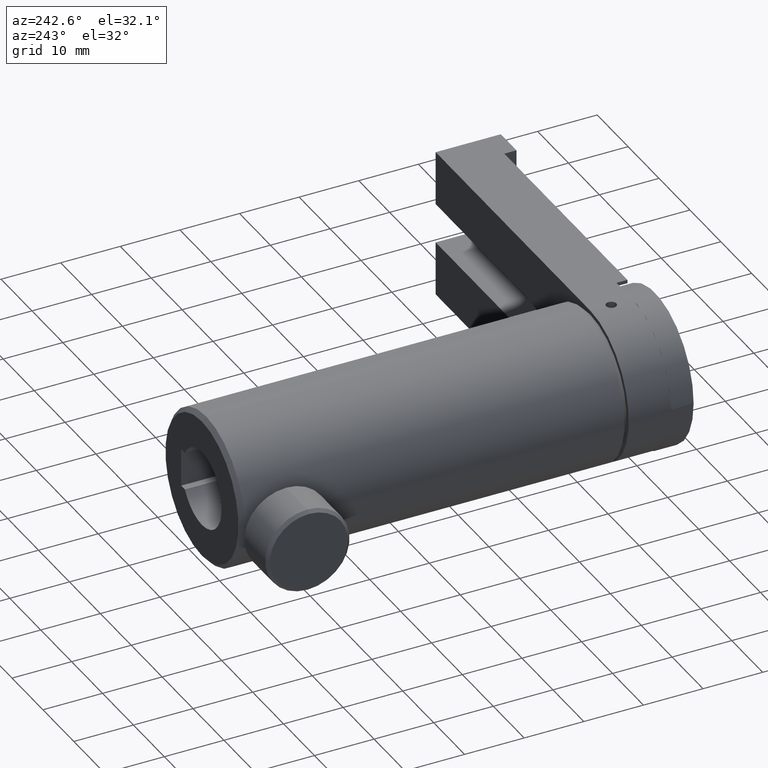
[diagram: clean part render]
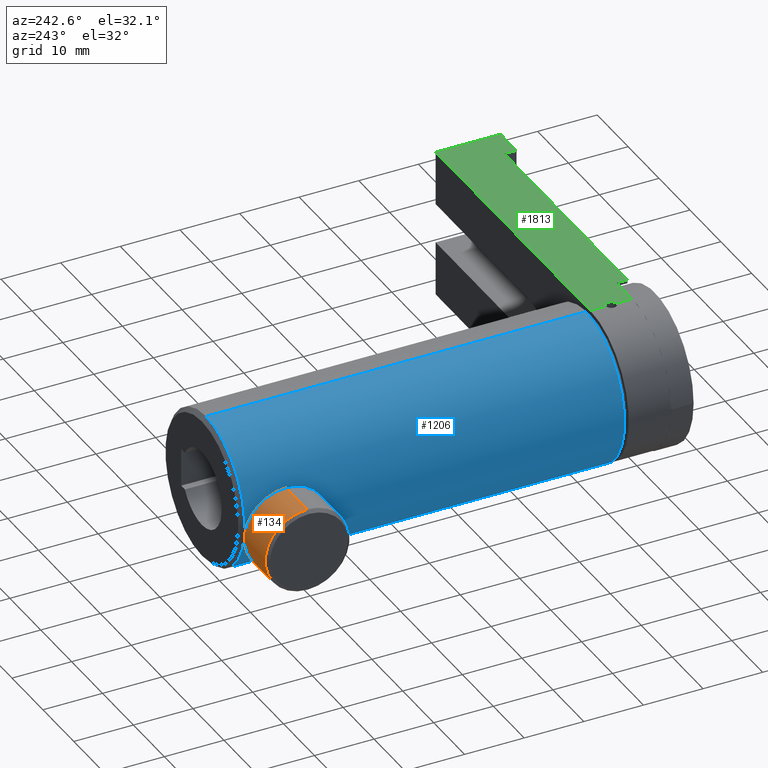
[diagram: same view with three faces highlighted in distinct colors, each labeled with its STEP entity id]
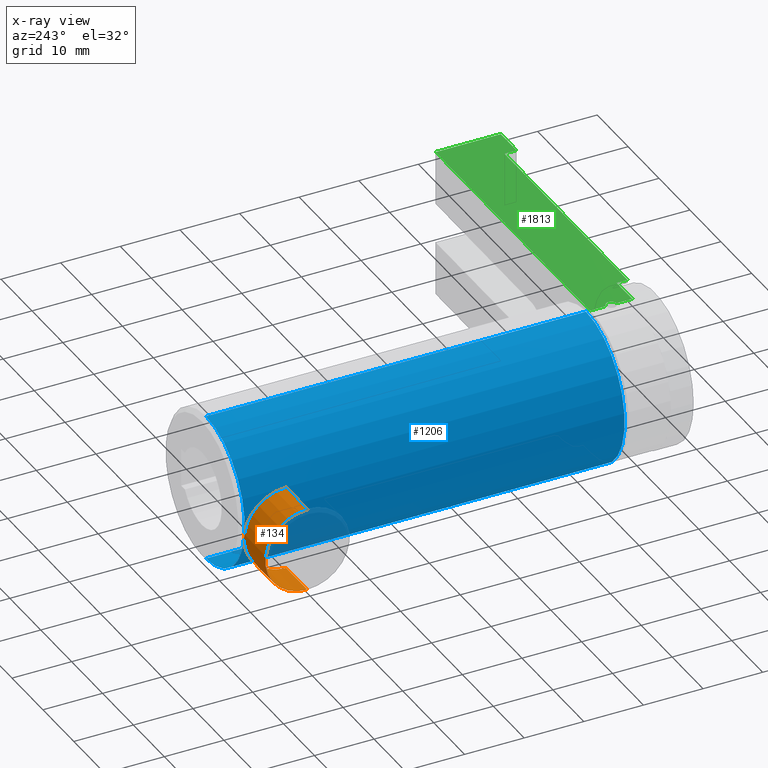
[diagram: x-ray of the same camera — body ghosted, the three highlighted faces saturated]
A machine part, auxiliary view with three faces highlighted in distinct colors.
The next image is the same camera in x-ray (body ghosted, the three faces saturated) — at least one of them is partly hidden behind the body in this view.
Their STEP definitions:

[orange] entity #134 — the highlighted cylindrical surface (partial cylindrical patch) has radius 7.0592 mm, axis along (-1, -0, -0).
#134 = ADVANCED_FACE ( 'NONE', ( #2560 ), #3252, .T. ) ;
#190 = AXIS2_PLACEMENT_3D ( 'NONE', #1488, #635, #2077 ) ;
#238 = VERTEX_POINT ( 'NONE', #1052 ) ;
#443 = CARTESIAN_POINT ( 'NONE',  ( -18.27973335610862200, 64.74362325169910500, -7.059201897910371700 ) ) ;
#486 = DIRECTION ( 'NONE',  ( -1.000000000000000000, -0.0000000000000000000, -0.0000000000000000000 ) ) ;
#635 = DIRECTION ( 'NONE',  ( -1.000000000000000000, -0.0000000000000000000, -0.0000000000000000000 ) ) ;
#852 = ORIENTED_EDGE ( 'NONE', *, *, #1083, .F. ) ;
#992 = CARTESIAN_POINT ( 'NONE',  ( -18.27973335610862200, 64.74362325169910500, 7.059201897910371700 ) ) ;
#1007 = ORIENTED_EDGE ( 'NONE', *, *, #2501, .F. ) ;
#1041 = VECTOR ( 'NONE', #2056, 1000.000000000000000 ) ;
#1052 = CARTESIAN_POINT ( 'NONE',  ( -11.42173335610862000, 64.74362325169910500, 7.059201897910371700 ) ) ;
#1083 = EDGE_CURVE ( 'NONE', #2663, #1564, #2188, .T. ) ;
#1119 = ORIENTED_EDGE ( 'NONE', *, *, #2477, .T. ) ;
#1316 = DIRECTION ( 'NONE',  ( 0.0000000000000000000, 0.0000000000000000000, 1.000000000000000000 ) ) ;
#1318 = DIRECTION ( 'NONE',  ( 0.0000000000000000000, 0.0000000000000000000, 1.000000000000000000 ) ) ;
#1463 = EDGE_CURVE ( 'NONE', #1542, #1564, #3333, .T. ) ;
#1488 = CARTESIAN_POINT ( 'NONE',  ( -11.42173335610862000, 64.74362325169910500, 0.0000000000000000000 ) ) ;
#1542 = VERTEX_POINT ( 'NONE', #3323 ) ;
#1564 = VERTEX_POINT ( 'NONE', #443 ) ;
#2056 = DIRECTION ( 'NONE',  ( -1.000000000000000000, -0.0000000000000000000, -0.0000000000000000000 ) ) ;
#2077 = DIRECTION ( 'NONE',  ( 0.0000000000000000000, 0.0000000000000000000, 1.000000000000000000 ) ) ;
#2173 = CIRCLE ( 'NONE', #190, 7.059201897910371700 ) ;
#2188 = CIRCLE ( 'NONE', #3645, 7.059201897910371700 ) ;
#2233 = CARTESIAN_POINT ( 'NONE',  ( -18.27973335610862200, 64.74362325169910500, 0.0000000000000000000 ) ) ;
#2302 = AXIS2_PLACEMENT_3D ( 'NONE', #2456, #3356, #1316 ) ;
#2456 = CARTESIAN_POINT ( 'NONE',  ( -18.78773335610861700, 64.74362325169910500, 0.0000000000000000000 ) ) ;
#2477 = EDGE_CURVE ( 'NONE', #238, #1542, #2173, .T. ) ;
#2501 = EDGE_CURVE ( 'NONE', #238, #2663, #3366, .T. ) ;
#2560 = FACE_OUTER_BOUND ( 'NONE', #3249, .T. ) ;
#2562 = VECTOR ( 'NONE', #3559, 1000.000000000000000 ) ;
#2663 = VERTEX_POINT ( 'NONE', #992 ) ;
#3072 = ORIENTED_EDGE ( 'NONE', *, *, #1463, .T. ) ;
#3249 = EDGE_LOOP ( 'NONE', ( #1119, #3072, #852, #1007 ) ) ;
#3252 = CYLINDRICAL_SURFACE ( 'NONE', #2302, 7.059201897910371700 ) ;
#3274 = CARTESIAN_POINT ( 'NONE',  ( -18.78773335610861700, 64.74362325169910500, 7.059201897910371700 ) ) ;
#3323 = CARTESIAN_POINT ( 'NONE',  ( -11.42173335610862000, 64.74362325169910500, -7.059201897910371700 ) ) ;
#3333 = LINE ( 'NONE', #3613, #2562 ) ;
#3356 = DIRECTION ( 'NONE',  ( -1.000000000000000000, -0.0000000000000000000, -0.0000000000000000000 ) ) ;
#3366 = LINE ( 'NONE', #3274, #1041 ) ;
#3559 = DIRECTION ( 'NONE',  ( -1.000000000000000000, -0.0000000000000000000, -0.0000000000000000000 ) ) ;
#3613 = CARTESIAN_POINT ( 'NONE',  ( -18.78773335610861700, 64.74362325169910500, -7.059201897910371700 ) ) ;
#3645 = AXIS2_PLACEMENT_3D ( 'NONE', #2233, #486, #1318 ) ;

[blue] entity #1206 — the highlighted cylindrical surface (partial cylindrical patch) has radius 12.4968 mm, axis along (-0, -1, -0).
#52 = EDGE_LOOP ( 'NONE', ( #1976, #112, #462, #1527 ) ) ;
#55 = AXIS2_PLACEMENT_3D ( 'NONE', #1140, #3129, #2279 ) ;
#112 = ORIENTED_EDGE ( 'NONE', *, *, #1424, .T. ) ;
#300 = EDGE_CURVE ( 'NONE', #2987, #2214, #3087, .T. ) ;
#360 = DIRECTION ( 'NONE',  ( 0.0000000000000000000, -1.000000000000000000, 0.0000000000000000000 ) ) ;
#462 = ORIENTED_EDGE ( 'NONE', *, *, #2813, .T. ) ;
#474 = AXIS2_PLACEMENT_3D ( 'NONE', #537, #2549, #2584 ) ;
#478 = DIRECTION ( 'NONE',  ( -0.0000000000000000000, -1.000000000000000000, -0.0000000000000000000 ) ) ;
#485 = LINE ( 'NONE', #3730, #1172 ) ;
#533 = VECTOR ( 'NONE', #478, 1000.000000000000000 ) ;
#537 = CARTESIAN_POINT ( 'NONE',  ( 4.123066643891380800, 6.398134787764880600, -1.839923381405735800E-015 ) ) ;
#648 = VERTEX_POINT ( 'NONE', #1524 ) ;
#726 = CYLINDRICAL_SURFACE ( 'NONE', #55, 12.49680000000000600 ) ;
#1049 = CIRCLE ( 'NONE', #3420, 12.49680000000000600 ) ;
#1140 = CARTESIAN_POINT ( 'NONE',  ( 4.123066643891380800, 70.82713478776489100, -1.839923381405735800E-015 ) ) ;
#1172 = VECTOR ( 'NONE', #2246, 1000.000000000000000 ) ;
#1206 = ADVANCED_FACE ( 'NONE', ( #2091 ), #726, .T. ) ;
#1266 = CARTESIAN_POINT ( 'NONE',  ( 4.123066643891380800, 70.12713478776488800, -1.839923381405735800E-015 ) ) ;
#1424 = EDGE_CURVE ( 'NONE', #648, #2806, #1049, .T. ) ;
#1524 = CARTESIAN_POINT ( 'NONE',  ( 4.123066643891382600, 70.12713478776488800, 12.49680000000000400 ) ) ;
#1527 = ORIENTED_EDGE ( 'NONE', *, *, #300, .T. ) ;
#1967 = CARTESIAN_POINT ( 'NONE',  ( 4.123066643891382600, 6.398134787764880600, 12.49680000000000400 ) ) ;
#1976 = ORIENTED_EDGE ( 'NONE', *, *, #3353, .F. ) ;
#1997 = LINE ( 'NONE', #2532, #533 ) ;
#2091 = FACE_OUTER_BOUND ( 'NONE', #52, .T. ) ;
#2209 = CARTESIAN_POINT ( 'NONE',  ( 4.123066643891380800, 70.12713478776488800, -12.49680000000000700 ) ) ;
#2214 = VERTEX_POINT ( 'NONE', #1967 ) ;
#2246 = DIRECTION ( 'NONE',  ( -0.0000000000000000000, -1.000000000000000000, -0.0000000000000000000 ) ) ;
#2279 = DIRECTION ( 'NONE',  ( 0.0000000000000000000, 0.0000000000000000000, -1.000000000000000000 ) ) ;
#2532 = CARTESIAN_POINT ( 'NONE',  ( 4.123066643891380800, 70.82713478776489100, -12.49680000000000700 ) ) ;
#2549 = DIRECTION ( 'NONE',  ( -0.0000000000000000000, 1.000000000000000000, -0.0000000000000000000 ) ) ;
#2584 = DIRECTION ( 'NONE',  ( 0.0000000000000000000, 0.0000000000000000000, 1.000000000000000000 ) ) ;
#2626 = CARTESIAN_POINT ( 'NONE',  ( 4.123066643891380800, 6.398134787764880600, -12.49680000000000700 ) ) ;
#2806 = VERTEX_POINT ( 'NONE', #2209 ) ;
#2813 = EDGE_CURVE ( 'NONE', #2806, #2987, #1997, .T. ) ;
#2987 = VERTEX_POINT ( 'NONE', #2626 ) ;
#3020 = DIRECTION ( 'NONE',  ( 0.0000000000000000000, 0.0000000000000000000, 1.000000000000000000 ) ) ;
#3087 = CIRCLE ( 'NONE', #474, 12.49680000000000600 ) ;
#3129 = DIRECTION ( 'NONE',  ( -0.0000000000000000000, -1.000000000000000000, -0.0000000000000000000 ) ) ;
#3353 = EDGE_CURVE ( 'NONE', #648, #2214, #485, .T. ) ;
#3420 = AXIS2_PLACEMENT_3D ( 'NONE', #1266, #360, #3020 ) ;
#3730 = CARTESIAN_POINT ( 'NONE',  ( 4.123066643891382600, 70.82713478776489100, 12.49680000000000400 ) ) ;

[green] entity #1813 — the highlighted planar face has unit normal (0, 0, -1).
#3 = ORIENTED_EDGE ( 'NONE', *, *, #3030, .T. ) ;
#158 = CARTESIAN_POINT ( 'NONE',  ( 4.123066643891380800, 3.018434787764893800, 12.49679999999999900 ) ) ;
#161 = CARTESIAN_POINT ( 'NONE',  ( 9.203066643891379100, -3.191865212235105400, 12.49679999999999900 ) ) ;
#164 = LINE ( 'NONE', #3509, #3052 ) ;
#235 = PLANE ( 'NONE',  #1334 ) ;
#245 = EDGE_CURVE ( 'NONE', #962, #687, #2447, .T. ) ;
#277 = DIRECTION ( 'NONE',  ( -0.0000000000000000000, -1.000000000000000000, -0.0000000000000000000 ) ) ;
#350 = VERTEX_POINT ( 'NONE', #3748 ) ;
#385 = DIRECTION ( 'NONE',  ( 1.000000000000000000, 0.0000000000000000000, 0.0000000000000000000 ) ) ;
#446 = ORIENTED_EDGE ( 'NONE', *, *, #3022, .T. ) ;
#457 = ORIENTED_EDGE ( 'NONE', *, *, #3491, .F. ) ;
#491 = EDGE_CURVE ( 'NONE', #3712, #2672, #1350, .T. ) ;
#523 = LINE ( 'NONE', #2026, #1614 ) ;
#531 = VERTEX_POINT ( 'NONE', #624 ) ;
#617 = ORIENTED_EDGE ( 'NONE', *, *, #913, .T. ) ;
#624 = CARTESIAN_POINT ( 'NONE',  ( 54.12306664389138400, -5.223865212235105900, 12.49679999999999900 ) ) ;
#687 = VERTEX_POINT ( 'NONE', #158 ) ;
#733 = ORIENTED_EDGE ( 'NONE', *, *, #1324, .F. ) ;
#758 = VECTOR ( 'NONE', #1437, 1000.000000000000000 ) ;
#855 = ORIENTED_EDGE ( 'NONE', *, *, #491, .T. ) ;
#877 = CARTESIAN_POINT ( 'NONE',  ( 4.123066643891379900, 2.167534787764893600, 12.49679999999999900 ) ) ;
#882 = CARTESIAN_POINT ( 'NONE',  ( -29.62103515794081700, -5.223865212235105900, 12.49679999999999900 ) ) ;
#884 = CARTESIAN_POINT ( 'NONE',  ( 4.973966643891380100, 2.167534787764893600, 12.49679999999999900 ) ) ;
#895 = ORIENTED_EDGE ( 'NONE', *, *, #2378, .F. ) ;
#913 = EDGE_CURVE ( 'NONE', #2693, #3712, #523, .T. ) ;
#956 = CARTESIAN_POINT ( 'NONE',  ( -29.62103515794081700, -3.191865212235105400, 12.49679999999999900 ) ) ;
#962 = VERTEX_POINT ( 'NONE', #884 ) ;
#1091 = DIRECTION ( 'NONE',  ( -0.0000000000000000000, -0.0000000000000000000, 1.000000000000000000 ) ) ;
#1099 = LINE ( 'NONE', #956, #3059 ) ;
#1104 = DIRECTION ( 'NONE',  ( 1.000000000000000000, 0.0000000000000000000, 0.0000000000000000000 ) ) ;
#1167 = DIRECTION ( 'NONE',  ( -0.0000000000000000000, -0.0000000000000000000, 1.000000000000000000 ) ) ;
#1185 = VERTEX_POINT ( 'NONE', #2888 ) ;
#1246 = EDGE_LOOP ( 'NONE', ( #733, #617, #855, #1335, #2557, #3, #446, #895, #457, #1481, #3395 ) ) ;
#1324 = EDGE_CURVE ( 'NONE', #2693, #962, #2466, .T. ) ;
#1334 = AXIS2_PLACEMENT_3D ( 'NONE', #3490, #2615, #3153 ) ;
#1335 = ORIENTED_EDGE ( 'NONE', *, *, #2235, .T. ) ;
#1350 = LINE ( 'NONE', #3819, #1895 ) ;
#1437 = DIRECTION ( 'NONE',  ( 1.000000000000000000, -0.0000000000000000000, 0.0000000000000000000 ) ) ;
#1481 = ORIENTED_EDGE ( 'NONE', *, *, #3407, .T. ) ;
#1486 = LINE ( 'NONE', #2025, #2259 ) ;
#1494 = EDGE_CURVE ( 'NONE', #3802, #3035, #1099, .T. ) ;
#1519 = AXIS2_PLACEMENT_3D ( 'NONE', #3171, #1091, #1104 ) ;
#1533 = CARTESIAN_POINT ( 'NONE',  ( 9.203066643891379100, -1.363065212235106600, 12.49679999999999900 ) ) ;
#1614 = VECTOR ( 'NONE', #2319, 1000.000000000000000 ) ;
#1650 = CARTESIAN_POINT ( 'NONE',  ( 4.123066643891380800, 5.698134787764893800, 12.49679999999999900 ) ) ;
#1739 = VECTOR ( 'NONE', #2853, 1000.000000000000000 ) ;
#1753 = DIRECTION ( 'NONE',  ( 0.0000000000000000000, -1.000000000000000000, 0.0000000000000000000 ) ) ;
#1790 = LINE ( 'NONE', #1650, #1739 ) ;
#1813 = ADVANCED_FACE ( 'NONE', ( #2647 ), #235, .F. ) ;
#1895 = VECTOR ( 'NONE', #2042, 1000.000000000000000 ) ;
#1994 = LINE ( 'NONE', #882, #758 ) ;
#2025 = CARTESIAN_POINT ( 'NONE',  ( 49.04306664389137900, -3.191865212235105400, 12.49679999999999900 ) ) ;
#2026 = CARTESIAN_POINT ( 'NONE',  ( 4.123066643891380800, 5.698134787764893800, 12.49679999999999900 ) ) ;
#2032 = DIRECTION ( 'NONE',  ( 0.0000000000000000000, -1.000000000000000000, 0.0000000000000000000 ) ) ;
#2042 = DIRECTION ( 'NONE',  ( 1.000000000000000000, 0.0000000000000000000, 0.0000000000000000000 ) ) ;
#2060 = DIRECTION ( 'NONE',  ( 1.000000000000000000, 0.0000000000000000000, 0.0000000000000000000 ) ) ;
#2235 = EDGE_CURVE ( 'NONE', #2672, #3802, #164, .T. ) ;
#2259 = VECTOR ( 'NONE', #1753, 1000.000000000000000 ) ;
#2267 = CARTESIAN_POINT ( 'NONE',  ( -29.62103515794081700, 5.698134787764893800, 12.49679999999999900 ) ) ;
#2315 = VECTOR ( 'NONE', #277, 1000.000000000000000 ) ;
#2319 = DIRECTION ( 'NONE',  ( -0.0000000000000000000, -1.000000000000000000, -0.0000000000000000000 ) ) ;
#2378 = EDGE_CURVE ( 'NONE', #350, #531, #2408, .T. ) ;
#2408 = LINE ( 'NONE', #2617, #2315 ) ;
#2427 = LINE ( 'NONE', #2267, #3442 ) ;
#2447 = CIRCLE ( 'NONE', #1519, 0.8508999999999998800 ) ;
#2466 = CIRCLE ( 'NONE', #2836, 0.8508999999999998800 ) ;
#2557 = ORIENTED_EDGE ( 'NONE', *, *, #1494, .T. ) ;
#2615 = DIRECTION ( 'NONE',  ( 0.0000000000000000000, 0.0000000000000000000, -1.000000000000000000 ) ) ;
#2617 = CARTESIAN_POINT ( 'NONE',  ( 54.12306664389138400, 5.698134787764893800, 12.49679999999999900 ) ) ;
#2647 = FACE_OUTER_BOUND ( 'NONE', #1246, .T. ) ;
#2670 = CARTESIAN_POINT ( 'NONE',  ( 49.04306664389137900, -5.223865212235105900, 12.49679999999999900 ) ) ;
#2672 = VERTEX_POINT ( 'NONE', #1533 ) ;
#2693 = VERTEX_POINT ( 'NONE', #2769 ) ;
#2769 = CARTESIAN_POINT ( 'NONE',  ( 4.123066643891380800, 1.316634787764893800, 12.49679999999999900 ) ) ;
#2836 = AXIS2_PLACEMENT_3D ( 'NONE', #877, #1167, #2060 ) ;
#2853 = DIRECTION ( 'NONE',  ( -0.0000000000000000000, -1.000000000000000000, -0.0000000000000000000 ) ) ;
#2888 = CARTESIAN_POINT ( 'NONE',  ( 4.123066643891380800, 5.698134787764893800, 12.49679999999999900 ) ) ;
#3022 = EDGE_CURVE ( 'NONE', #3145, #531, #1994, .T. ) ;
#3030 = EDGE_CURVE ( 'NONE', #3035, #3145, #1486, .T. ) ;
#3035 = VERTEX_POINT ( 'NONE', #3498 ) ;
#3052 = VECTOR ( 'NONE', #2032, 1000.000000000000000 ) ;
#3059 = VECTOR ( 'NONE', #385, 1000.000000000000000 ) ;
#3145 = VERTEX_POINT ( 'NONE', #2670 ) ;
#3153 = DIRECTION ( 'NONE',  ( -1.000000000000000000, 0.0000000000000000000, -0.0000000000000000000 ) ) ;
#3171 = CARTESIAN_POINT ( 'NONE',  ( 4.123066643891379900, 2.167534787764893600, 12.49679999999999900 ) ) ;
#3186 = DIRECTION ( 'NONE',  ( 1.000000000000000000, -0.0000000000000000000, 0.0000000000000000000 ) ) ;
#3395 = ORIENTED_EDGE ( 'NONE', *, *, #245, .F. ) ;
#3407 = EDGE_CURVE ( 'NONE', #1185, #687, #1790, .T. ) ;
#3442 = VECTOR ( 'NONE', #3186, 1000.000000000000000 ) ;
#3490 = CARTESIAN_POINT ( 'NONE',  ( -29.62103515794081700, 5.698134787764893800, 12.49679999999999900 ) ) ;
#3491 = EDGE_CURVE ( 'NONE', #1185, #350, #2427, .T. ) ;
#3498 = CARTESIAN_POINT ( 'NONE',  ( 49.04306664389137900, -3.191865212235105400, 12.49679999999999900 ) ) ;
#3509 = CARTESIAN_POINT ( 'NONE',  ( 9.203066643891379100, -1.363065212235106600, 12.49679999999999900 ) ) ;
#3631 = CARTESIAN_POINT ( 'NONE',  ( 4.123066643891380800, -1.363065212235106600, 12.49679999999999900 ) ) ;
#3712 = VERTEX_POINT ( 'NONE', #3631 ) ;
#3748 = CARTESIAN_POINT ( 'NONE',  ( 54.12306664389138400, 5.698134787764893800, 12.49679999999999900 ) ) ;
#3802 = VERTEX_POINT ( 'NONE', #161 ) ;
#3819 = CARTESIAN_POINT ( 'NONE',  ( 23.17306664389138500, -1.363065212235106600, 12.49679999999999900 ) ) ;